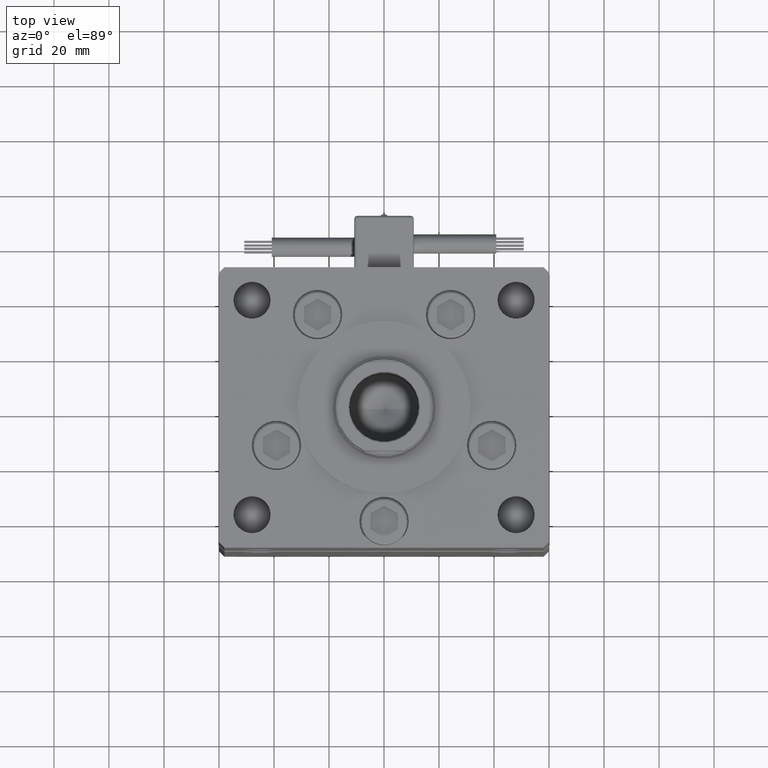
[diagram: clean part render]
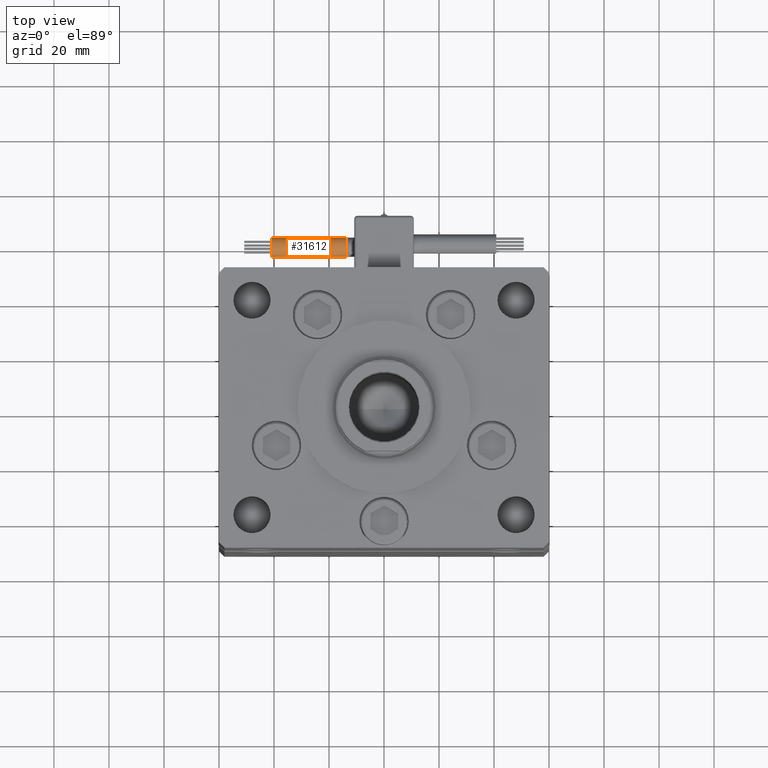
[diagram: same view with one face highlighted and labeled with its STEP entity id]
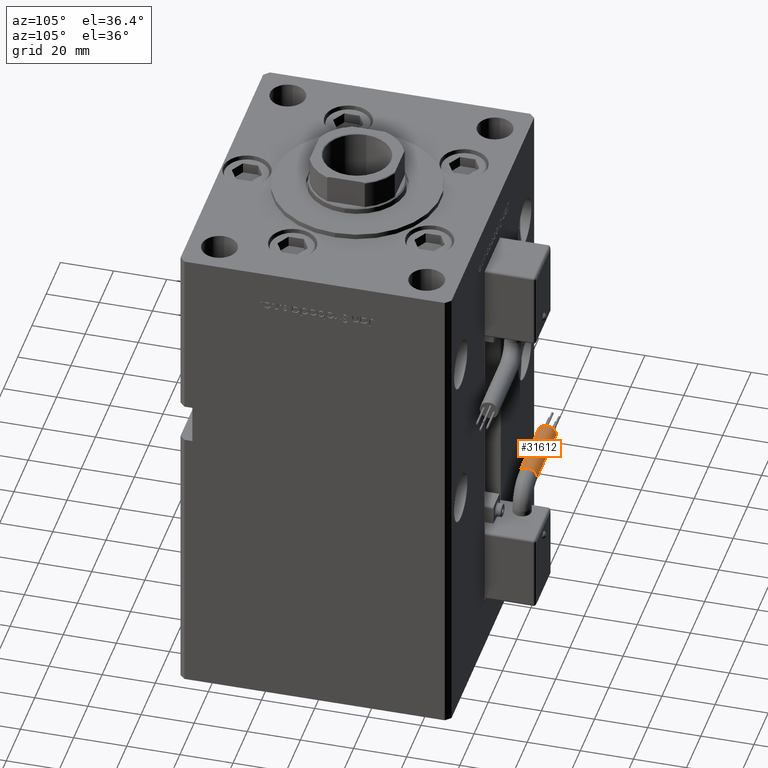
[diagram: same view with one face highlighted and labeled with its STEP entity id]
A machine part, top view. The second image highlights one B-rep face of the part: STEP entity #31612.
A second angle (auxiliary view) of the same face is appended — the face is thin or edge-on in the first view.
In plain terms, the highlighted cylindrical surface (edge-blend (fillet) strip) has radius 3.5 mm, axis along (-1, -0, -0).
Its self-contained STEP definition (entity closure, byte-faithful):
#787 = AXIS2_PLACEMENT_3D ( 'NONE', #12881, #30255, #43379 ) ;
#830 = VERTEX_POINT ( 'NONE', #11578 ) ;
#1725 = CYLINDRICAL_SURFACE ( 'NONE', #40001, 3.500000000000003109 ) ;
#5032 = VERTEX_POINT ( 'NONE', #55998 ) ;
#5717 = DIRECTION ( 'NONE',  ( -4.956352788505158337E-16, -1.000000000000000000, 0.000000000000000000 ) ) ;
#10434 = ORIENTED_EDGE ( 'NONE', *, *, #22091, .F. ) ;
#11578 = CARTESIAN_POINT ( 'NONE',  ( 40.80000000000000426, 38.50000000000000000, -65.00000000000000000 ) ) ;
#11723 = EDGE_CURVE ( 'NONE', #50172, #44491, #42432, .T. ) ;
#11746 = CARTESIAN_POINT ( 'NONE',  ( 40.80000000000000426, 45.50000000000000711, -65.00000000000000000 ) ) ;
#12532 = CARTESIAN_POINT ( 'NONE',  ( 13.79999999999999893, 42.00000000000000000, -68.50000000000000000 ) ) ;
#12881 = CARTESIAN_POINT ( 'NONE',  ( 13.79999999999999893, 42.00000000000000000, -65.00000000000000000 ) ) ;
#14401 = DIRECTION ( 'NONE',  ( 1.000000000000000000, 0.000000000000000000, 2.220446049250000002E-16 ) ) ;
#15136 = CARTESIAN_POINT ( 'NONE',  ( 13.79999999999999893, 42.00000000000000000, -65.00000000000000000 ) ) ;
#15397 = AXIS2_PLACEMENT_3D ( 'NONE', #45454, #14401, #36325 ) ;
#19137 = DIRECTION ( 'NONE',  ( 1.000000000000000000, -2.599999999999999847E-16, 2.220446049250000002E-16 ) ) ;
#19428 = LINE ( 'NONE', #36779, #22770 ) ;
#19980 = EDGE_CURVE ( 'NONE', #5032, #46945, #29919, .T. ) ;
#21591 = EDGE_LOOP ( 'NONE', ( #27695, #41588, #25068, #10434, #22979 ) ) ;
#22091 = EDGE_CURVE ( 'NONE', #830, #44491, #31807, .T. ) ;
#22770 = VECTOR ( 'NONE', #28240, 1000.000000000000000 ) ;
#22979 = ORIENTED_EDGE ( 'NONE', *, *, #36019, .F. ) ;
#24509 = CARTESIAN_POINT ( 'NONE',  ( 13.80000000000000071, 45.50000000000000711, -65.00000000000000000 ) ) ;
#25068 = ORIENTED_EDGE ( 'NONE', *, *, #11723, .T. ) ;
#25373 = CIRCLE ( 'NONE', #787, 3.500000000000003109 ) ;
#27695 = ORIENTED_EDGE ( 'NONE', *, *, #19980, .T. ) ;
#28240 = DIRECTION ( 'NONE',  ( 1.000000000000000000, -2.599999999999999847E-16, 2.220446049250000002E-16 ) ) ;
#29919 = CIRCLE ( 'NONE', #15397, 3.500000000000003109 ) ;
#29960 = EDGE_CURVE ( 'NONE', #46945, #50172, #25373, .T. ) ;
#30255 = DIRECTION ( 'NONE',  ( 1.000000000000000000, 0.000000000000000000, 2.220446049250000002E-16 ) ) ;
#31612 = ADVANCED_FACE ( 'NONE', ( #36768 ), #1725, .T. ) ;
#31807 = CIRCLE ( 'NONE', #36363, 3.500000000000003109 ) ;
#31953 = DIRECTION ( 'NONE',  ( 1.000000000000000000, 0.000000000000000000, 2.220446049250000002E-16 ) ) ;
#36019 = EDGE_CURVE ( 'NONE', #5032, #830, #19428, .T. ) ;
#36325 = DIRECTION ( 'NONE',  ( 0.000000000000000000, 0.000000000000000000, -1.000000000000000000 ) ) ;
#36363 = AXIS2_PLACEMENT_3D ( 'NONE', #44493, #31953, #49359 ) ;
#36768 = FACE_OUTER_BOUND ( 'NONE', #21591, .T. ) ;
#36779 = CARTESIAN_POINT ( 'NONE',  ( 13.79999999999999716, 38.50000000000000000, -65.00000000000000000 ) ) ;
#40001 = AXIS2_PLACEMENT_3D ( 'NONE', #15136, #19137, #5717 ) ;
#41588 = ORIENTED_EDGE ( 'NONE', *, *, #29960, .T. ) ;
#42432 = LINE ( 'NONE', #24509, #48792 ) ;
#43142 = CARTESIAN_POINT ( 'NONE',  ( 13.79999999999999893, 45.50000000000000711, -65.00000000000000000 ) ) ;
#43379 = DIRECTION ( 'NONE',  ( 0.000000000000000000, 0.000000000000000000, -1.000000000000000000 ) ) ;
#44491 = VERTEX_POINT ( 'NONE', #11746 ) ;
#44493 = CARTESIAN_POINT ( 'NONE',  ( 40.80000000000000426, 42.00000000000000000, -65.00000000000000000 ) ) ;
#45454 = CARTESIAN_POINT ( 'NONE',  ( 13.79999999999999893, 42.00000000000000000, -65.00000000000000000 ) ) ;
#46945 = VERTEX_POINT ( 'NONE', #12532 ) ;
#48792 = VECTOR ( 'NONE', #51558, 1000.000000000000000 ) ;
#49359 = DIRECTION ( 'NONE',  ( 0.000000000000000000, 0.000000000000000000, -1.000000000000000000 ) ) ;
#50172 = VERTEX_POINT ( 'NONE', #43142 ) ;
#51558 = DIRECTION ( 'NONE',  ( 1.000000000000000000, -2.599999999999999847E-16, 2.220446049250000002E-16 ) ) ;
#55998 = CARTESIAN_POINT ( 'NONE',  ( 13.79999999999999893, 38.50000000000000000, -65.00000000000000000 ) ) ;